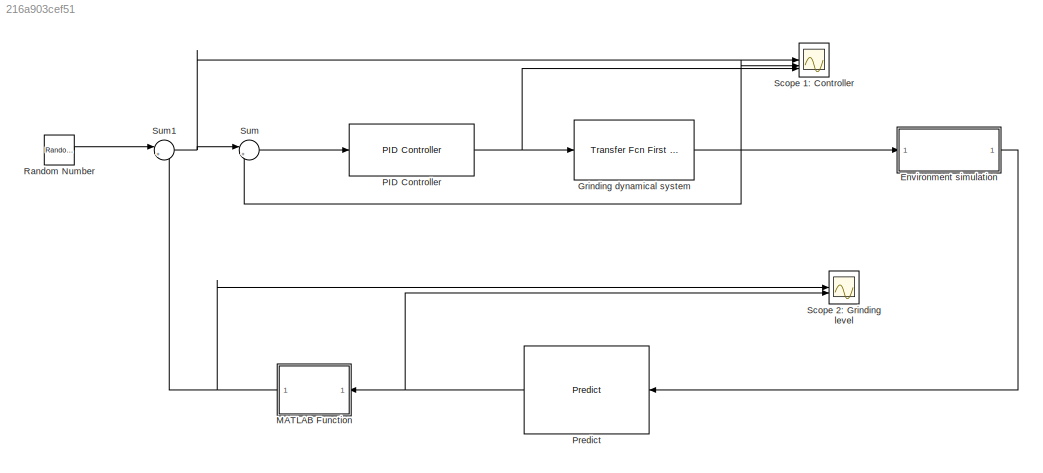
MODEL slx_216a903cef51
KIND model
CONFIG AbsTol = auto
CONFIG EnableMultiTasking = off
CONFIG FixedStep = auto
CONFIG MaxStep = auto
CONFIG MinStep = auto
CONFIG RelTol = 1e-3
CONFIG SampleTimeConstraint = Unconstrained
CONFIG SolverName = VariableStepAuto
CONFIG StartTime = 0.0
CONFIG StopTime = 10.0
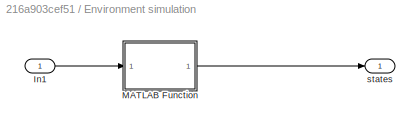
BLOCK [SubSystem] Environment simulation
BLOCK [Inport] Environment simulation/In1
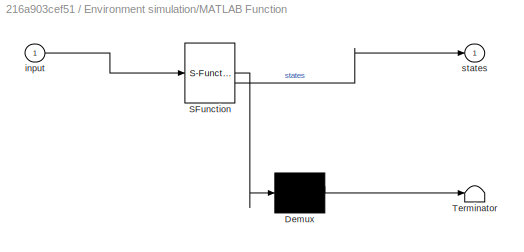
BLOCK [SubSystem] Environment simulation/MATLAB Function
  ErrorFcn = Stateflow.Translate.translate
  PermitHierarchicalResolution = ExplicitOnly
  SFBlockType = MATLAB Function
  TreatAsAtomicUnit = on
BLOCK [Demux] Environment simulation/MATLAB Function/ Demux 
  Outputs = 1
BLOCK [S-Function] Environment simulation/MATLAB Function/ SFunction 
  EnableBusSupport = on
  FunctionName = sf_sfun
  PortCounts = [1 2]
  SFcnIsStateOwnerBlock = off
  SFunctionDeploymentMode = off
  Tag = Stateflow S-Function 3
BLOCK [Terminator] Environment simulation/MATLAB Function/ Terminator 
BLOCK [Inport] Environment simulation/MATLAB Function/input
BLOCK [Outport] Environment simulation/MATLAB Function/states
BLOCK [Outport] Environment simulation/states
BLOCK [Reference] Grinding dynamical system  REF=simulink/Discrete/Transfer Fcn
First Order
  SourceBlock = simulink/Discrete/Transfer Fcn\nFirst Order
  SourceType = First Order Transfer Fcn
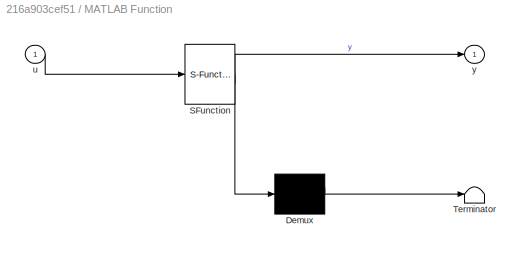
BLOCK [SubSystem] MATLAB Function
  ErrorFcn = Stateflow.Translate.translate
  NameLocation = top
  PermitHierarchicalResolution = ExplicitOnly
  SFBlockType = MATLAB Function
  TreatAsAtomicUnit = on
BLOCK [Demux] MATLAB Function/ Demux 
  Outputs = 1
BLOCK [S-Function] MATLAB Function/ SFunction 
  EnableBusSupport = on
  FunctionName = sf_sfun
  PortCounts = [1 2]
  SFcnIsStateOwnerBlock = off
  SFunctionDeploymentMode = off
  Tag = Stateflow S-Function 2
BLOCK [Terminator] MATLAB Function/ Terminator 
BLOCK [Inport] MATLAB Function/u
BLOCK [Outport] MATLAB Function/y
BLOCK [Reference] PID Controller  REF=slpidlib/PID Controller
  LibrarySourceBlock = simulink/Continuous/PID Controller
  SourceBlock = slpidlib/PID Controller
  SourceType = PID 1dof
BLOCK [Reference] Predict  REF=deeplib/Predict
  NameLocation = top
  SourceBlock = deeplib/Predict
  SourceType = Predict
BLOCK [RandomNumber] Random Number
  SampleTime = 0.1
BLOCK [Scope] Scope 1: Controller
  Floating = off
  NumInputPorts = 3
  ScopeSpecificationString = Simulink.scopes.TimeScopeBlockCfg('CurrentConfiguration', extmgr.ConfigurationSet(extmgr.Configuration('Core','General UI',true),extmgr.Configuration('Core','Source UI',true),extmgr.Configuration('Sources','WiredSimulink',true),extmgr.Configuration('Visuals','Time Domain',true,'SerializedDisplays',{struct('MinYLimReal','-3.08792','MaxYLimReal','2.67619','YLabelReal','','MinYLimMag','0.00000','MaxY...<+1511ch>
BLOCK [Scope] Scope 2: Grinding level
  Floating = off
  NumInputPorts = 2
  ScopeSpecificationString = Simulink.scopes.TimeScopeBlockCfg('CurrentConfiguration', extmgr.ConfigurationSet(extmgr.Configuration('Core','General UI',true),extmgr.Configuration('Core','Source UI',true),extmgr.Configuration('Sources','WiredSimulink',true,'DataLoggingVariableName','ScopeData1'),extmgr.Configuration('Visuals','Time Domain',true),extmgr.Configuration('Tools','Plot Navigation',true),extmgr.Configuration('Tools',...<+40ch>
BLOCK [Sum] Sum
  Inputs = |+-
BLOCK [Sum] Sum1
  Inputs = |++
LINE Environment simulation/In1:1 -> Environment simulation/MATLAB Function:1
LINE Environment simulation/MATLAB Function:1 -> Environment simulation/states:1
LINE Environment simulation:1 -> Predict:1
NET Grinding dynamical system:1 -> Environment simulation:1, Scope 1: Controller:2, Sum:2
NET MATLAB Function:1 -> Scope 2: Grinding level:1, Sum1:2
NET PID Controller:1 -> Grinding dynamical system:1, Scope 1: Controller:3
NET Predict:1 -> MATLAB Function:1, Scope 2: Grinding level:2
LINE Random Number:1 -> Sum1:1
NET Sum1:1 -> Scope 1: Controller:1, Sum:1
LINE Sum:1 -> PID Controller:1
note: NET lines group one-source signal fan-out (src -> all destinations, sorted); 1:1 wires keep LINE
CHART Environment simulation/MATLAB Function states=1 transitions=1
  STATE_LABEL 'eML_blk_kernel()'
  STATE_LABEL 'SCRIPT:\nfunction states = environment(input)\n    %#codegen\n\n    % Define how each state is computed from the input\n    states = zeros(6, 1); % Pre-allocate the output array\n    states(1) = input * 2;            % State 1\n    states(2) = input ^ 2;            % State 2\n    states(3) = sin(input);           % State 3\n    states(4) = cos(input);           % State 4\n    states(5) = log(1 + abs(input))...<+65ch>'
CHART MATLAB Function states=1 transitions=1
  STATE_LABEL 'eML_blk_kernel()'
  STATE_LABEL 'SCRIPT:\nfunction y = fcn(u)\n%#codegen\n\n% Specify the base value and delta\nbase_value = 0;   % Starting intensity\ndelta = 10;       % Step size for each level\n\n% Check the input and assign the output based on 20 cases\nif u == 1\n    y = base_value;\nelseif u == 2\n    y = base_value + 1 * delta;\nelseif u == 3\n    y = base_value + 2 * delta;\nelseif u == 4\n    y = base_value + 3 * delta;\nelseif u == 5\n ...<+803ch>'
CHART  states=0 transitions=0
CHART  states=0 transitions=0
